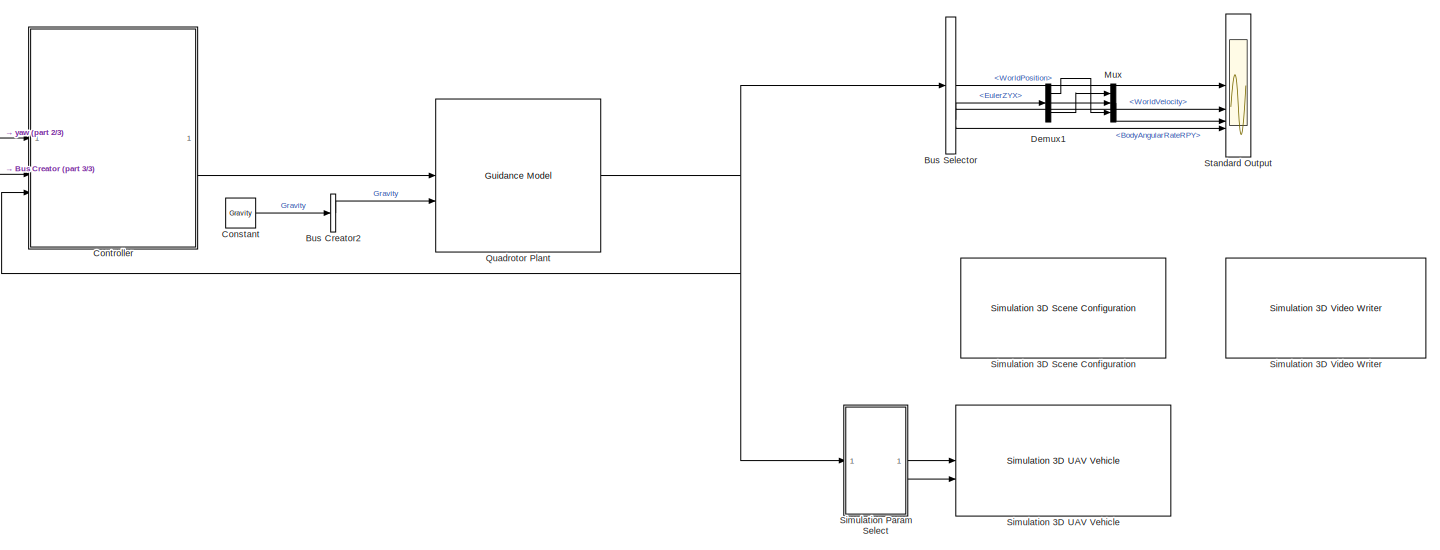
[diagram: root canvas - part 1/3, most of the canvas]
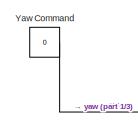
[diagram: root canvas - part 2/3, top left region]
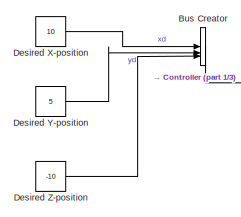
[diagram: root canvas - part 3/3, middle left region]
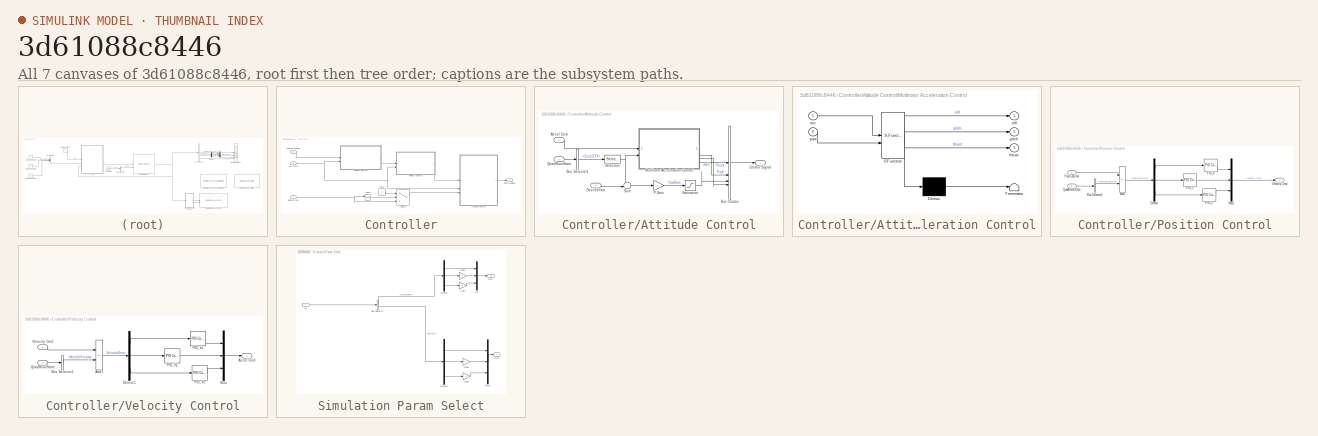
[diagram: thumbnail index - all 7 canvases of the model, root first then tree order]
MODEL slx_3d61088c8446
KIND model
CONFIG AbsTol = auto
CONFIG EnableMultiTasking = off
CONFIG FixedStep = auto
CONFIG InitFcn = % Proportional Gains\nPx = 6;\nPy = 6;\nPz = 6.5;\n\n% Derivative Gains\nDx = 1.5;\nDy = 1.5;\nDz = 2.5;\n\n% Integral Gains\nIx = 0;\nIy = 0;\nIz = 0;\n\n% Filter Coefficients\nNx = 10;\nNy = 10;\nNz = 14.4947065605712; \n\nUAVSampleTime = 0.001;\nGravity = 9.81;\nDroneMass = 0.1;
CONFIG MaxStep = auto
CONFIG MinStep = auto
CONFIG RelTol = 1e-3
CONFIG SampleTimeConstraint = Unconstrained
CONFIG SolverName = VariableStepAuto
CONFIG StartTime = 0.0
CONFIG StopTime = 20
BLOCK [BusCreator] Bus Creator
  DisplayOption = bar
  InheritFromInputs = on
  Inputs = 3
BLOCK [BusCreator] Bus Creator2
  DisplayOption = bar
  InheritFromInputs = on
  Inputs = 1
  NonVirtualBus = on
  OutDataTypeStr = Bus: uavGuidanceEnvironmentBus
BLOCK [BusSelector] Bus Selector
  OutputSignals = WorldPosition,WorldVelocity,EulerZYX,BodyAngularRateRPY
BLOCK [Constant] Constant
  OutDataTypeStr = single
  Value = Gravity
BLOCK [SubSystem] Controller
  NameLocation = top
BLOCK [SubSystem] Controller/Attitude Control
BLOCK [Inport] Controller/Attitude Control/Accel Cmd
BLOCK [BusCreator] Controller/Attitude Control/Bus Creator
  DisplayOption = bar
  InheritFromInputs = off
  Inputs = 4
  NonVirtualBus = on
  OutDataTypeStr = Bus: uavGuidanceControlBus
BLOCK [BusSelector] Controller/Attitude Control/Bus Selector1
  NameLocation = top
  OutputSignals = EulerZYX
BLOCK [Outport] Controller/Attitude Control/Control Signal
BLOCK [Inport] Controller/Attitude Control/DesiredYaw
  Port = 3
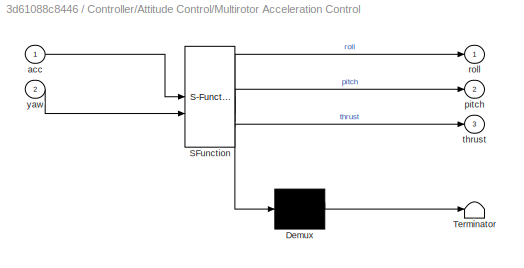
BLOCK [SubSystem] Controller/Attitude Control/Multirotor Acceleration Control
  ErrorFcn = Stateflow.Translate.translate
  PermitHierarchicalResolution = ExplicitOnly
  SFBlockType = MATLAB Function
  TreatAsAtomicUnit = on
BLOCK [Demux] Controller/Attitude Control/Multirotor Acceleration Control/ Demux 
  Outputs = 1
BLOCK [S-Function] Controller/Attitude Control/Multirotor Acceleration Control/ SFunction 
  EnableBusSupport = off
  FunctionName = sf_sfun
  Parameters = DroneMass,Gravity
  PortCounts = [2 4]
  SFcnIsStateOwnerBlock = off
  SFunctionDeploymentMode = off
  Tag = Stateflow S-Function 5
BLOCK [Terminator] Controller/Attitude Control/Multirotor Acceleration Control/ Terminator 
BLOCK [Inport] Controller/Attitude Control/Multirotor Acceleration Control/acc
BLOCK [Outport] Controller/Attitude Control/Multirotor Acceleration Control/pitch
  Port = 2
  VectorParamsAs1DForOutWhenUnconnected = off
BLOCK [Outport] Controller/Attitude Control/Multirotor Acceleration Control/roll
  VectorParamsAs1DForOutWhenUnconnected = off
BLOCK [Outport] Controller/Attitude Control/Multirotor Acceleration Control/thrust
  Port = 3
  VectorParamsAs1DForOutWhenUnconnected = off
BLOCK [Inport] Controller/Attitude Control/Multirotor Acceleration Control/yaw
  Port = 2
BLOCK [Gain] Controller/Attitude Control/P Gain
  Gain = 2
BLOCK [Inport] Controller/Attitude Control/QuadRotorState
  Port = 2
BLOCK [Saturate] Controller/Attitude Control/Saturation
BLOCK [Selector] Controller/Attitude Control/Selector1
  IndexOptions = Index vector (dialog)
  Indices = [1]
  InputPortWidth = 3
  OutputSizes = 1
BLOCK [Sum] Controller/Attitude Control/Sum
  Inputs = -+|
BLOCK [Outport] Controller/Control Signal
BLOCK [Inport] Controller/Desired Position
  Port = 2
BLOCK [Inport] Controller/Desired Yaw
BLOCK [RelationalOperator] Controller/IsNaN
  InputSameDT = off
  Operator = isNaN
  OutDataTypeStr = boolean
  RndMeth = Simplest
BLOCK [SubSystem] Controller/Position Control
BLOCK [Sum] Controller/Position Control/Add
  IconShape = rectangular
  Inputs = +-
BLOCK [BusSelector] Controller/Position Control/Bus Selector1
  NameLocation = top
  OutputSignals = WorldPosition
BLOCK [Demux] Controller/Position Control/Demux
  Outputs = 3
BLOCK [Mux] Controller/Position Control/Mux1
  DisplayOption = bar
  Inputs = 3
BLOCK [Reference] Controller/Position Control/PID_X  REF=slpidlib/PID Controller
  AttributesFormatString = P: %<P>, I: %<I>, D:%<D>
  SourceBlock = slpidlib/PID Controller
  SourceType = PID 1dof
BLOCK [Reference] Controller/Position Control/PID_Y  REF=slpidlib/PID Controller
  AttributesFormatString = P: %<P>, I: %<I>, D:%<D>
  SourceBlock = slpidlib/PID Controller
  SourceType = PID 1dof
BLOCK [Reference] Controller/Position Control/PID_Z  REF=slpidlib/PID Controller
  AttributesFormatString = P: %<P>, I: %<I>, D:%<D>
  SourceBlock = slpidlib/PID Controller
  SourceType = PID 1dof
BLOCK [Inport] Controller/Position Control/PositionCmd
BLOCK [Inport] Controller/Position Control/QuadRotorState
  Port = 2
BLOCK [Outport] Controller/Position Control/Velocity Cmd
BLOCK [Switch] Controller/Switch
  Criteria = u2 ~= 0
  InputSameDT = off
  SaturateOnIntegerOverflow = off
BLOCK [Inport] Controller/UAV State
  Port = 3
BLOCK [SubSystem] Controller/Velocity Control
BLOCK [Outport] Controller/Velocity Control/Accel Cmd
BLOCK [Sum] Controller/Velocity Control/Add1
  IconShape = rectangular
  Inputs = +-
BLOCK [BusSelector] Controller/Velocity Control/Bus Selector1
  NameLocation = top
  OutputSignals = WorldVelocity
BLOCK [Demux] Controller/Velocity Control/Demux1
  Outputs = 3
BLOCK [Mux] Controller/Velocity Control/Mux
  DisplayOption = bar
  Inputs = 3
BLOCK [Reference] Controller/Velocity Control/PID_Vx  REF=slpidlib/PID Controller
  AttributesFormatString = P: %<P>, I: %<I>, D:%<D>
  SourceBlock = slpidlib/PID Controller
  SourceType = PID 1dof
BLOCK [Reference] Controller/Velocity Control/PID_Vy  REF=slpidlib/PID Controller
  AttributesFormatString = P: %<P>, I: %<I>, D:%<D>
  SourceBlock = slpidlib/PID Controller
  SourceType = PID 1dof
BLOCK [Reference] Controller/Velocity Control/PID_Vz  REF=slpidlib/PID Controller
  AttributesFormatString = P: %<P>, I: %<I>, D:%<D>
  SourceBlock = slpidlib/PID Controller
  SourceType = PID 1dof
BLOCK [Inport] Controller/Velocity Control/QuadRotorState
  Port = 2
BLOCK [Inport] Controller/Velocity Control/Velocity Cmd
BLOCK [Constant] Controller/Zero
  OutDataTypeStr = Inherit: Inherit via back propagation
  Value = 0
BLOCK [Demux] Demux1
  Outputs = 3
BLOCK [Constant] Desired X-position
  OutDataTypeStr = single
  Value = 10
BLOCK [Constant] Desired Y-position
  OutDataTypeStr = single
  Value = 5
BLOCK [Constant] Desired Z-position
  OutDataTypeStr = single
  Value = -10
BLOCK [Mux] Mux
  DisplayOption = bar
  Inputs = 3
BLOCK [Reference] Quadrotor Plant  REF=uavalgslib/Guidance Model
  NameLocation = top
  SourceBlock = uavalgslib/Guidance Model
  SourceType = Guidance Model
BLOCK [Reference] Simulation 3D Scene Configuration  REF=sim3dlib/Simulation 3D Scene Configuration
  LibrarySourceBlock = uavsim3dlib/Simulation 3D Scene Configuration
  Priority = 0
  SourceBlock = sim3dlib/Simulation 3D Scene Configuration
  SourceType = Simulation 3D Scene Configuration
BLOCK [Reference] Simulation 3D UAV Vehicle  REF=uavsim3dlib/Simulation 3D UAV Vehicle
  Priority = -1
  SourceBlock = uavsim3dlib/Simulation 3D UAV Vehicle
  SourceType = Simulation 3D UAV Vehicle
BLOCK [Reference] Simulation 3D Video Writer  REF=sim3dlib/Simulation 3D Video Writer
  Commented = on
  LibrarySourceBlock = sl3dlib/Simulation 3D/Utilities/Simulation 3D Video Writer
  Priority = 1
  SourceBlock = sim3dlib/Simulation 3D Video Writer
  SourceType = Simulation3DVideoWriterSystem
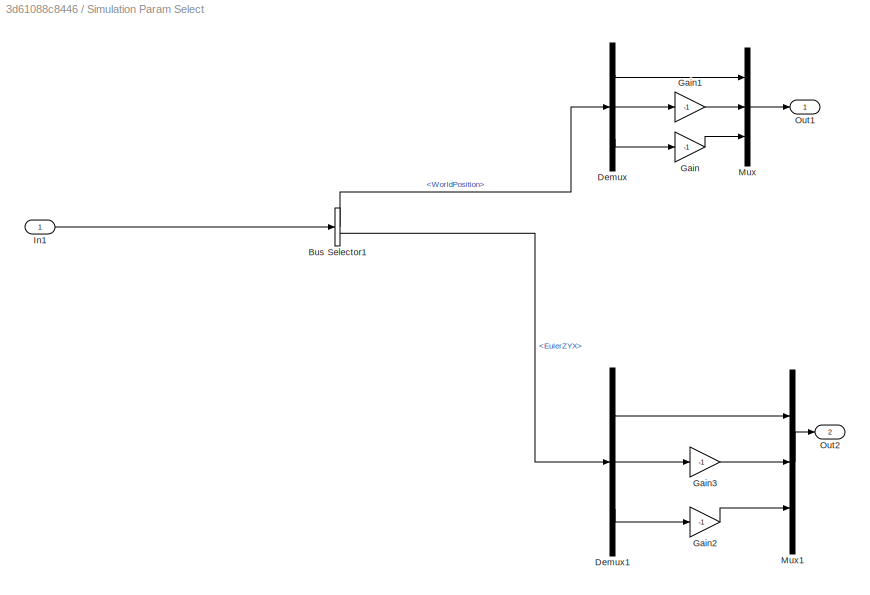
BLOCK [SubSystem] Simulation Param Select
BLOCK [BusSelector] Simulation Param Select/Bus Selector1
  OutputSignals = WorldPosition,EulerZYX
BLOCK [Demux] Simulation Param Select/Demux
  Outputs = 3
BLOCK [Demux] Simulation Param Select/Demux1
  Outputs = 3
BLOCK [Gain] Simulation Param Select/Gain
  Gain = -1
BLOCK [Gain] Simulation Param Select/Gain1
  Gain = -1
BLOCK [Gain] Simulation Param Select/Gain2
  Gain = -1
BLOCK [Gain] Simulation Param Select/Gain3
  Gain = -1
BLOCK [Inport] Simulation Param Select/In1
BLOCK [Mux] Simulation Param Select/Mux
  DisplayOption = bar
  Inputs = 3
BLOCK [Mux] Simulation Param Select/Mux1
  DisplayOption = bar
  Inputs = 3
BLOCK [Outport] Simulation Param Select/Out1
BLOCK [Outport] Simulation Param Select/Out2
  Port = 2
BLOCK [Scope] Standard Output
  ActiveDisplayYMaximum = 15.896650850772858
  ActiveDisplayYMinimum = -10.651587545871735
  Floating = off
  GraphicalSettings = {"Style":{"BackgroundColor":[0.12941176470588237,0.12941176470588237,0.12941176470588237],"AxesColor":[0.07058823529411765,0.07058823529411765,0.07058823529411765],"LabelsColor":[0.8509803921568627,0.8509803921568627,0.8509803921568627],"PreserveColors":false,"Visible":[true,true,true,true,true,true,true,true,true,true,true,true],"LineStyle":["-","-","-","-","-","-","-","-","-","-","-","-"],"LineW...<+4202ch>
  LayoutDimensionsString = [4 1]
  MultipleDisplayCache = [{"MaxYLimMag":15.896650850772858,"MaxYLimReal":15.896650850772858,"MinYLimMag":0,"MinYLimReal":-10.651587545871735,"PlotAsMagnitudePhase":false,"ShowGrid":true,"ShowLegend":true,"Title":"%<SignalLabel>","YLabel":""},{"MaxYLimMag":3.7338400483131409,"MaxYLimReal":3.7338400483131409,"MinYLimMag":0,"MinYLimReal":-3.6987858414649963,"PlotAsMagnitudePhase":false,"ShowGrid":true,"ShowLegend":true,"Titl...<+467ch>
  NumInputPorts = 4
  ScopeFrameLocation = window
  ShowLegend = on
  Visible = on
  WasSavedAsWebScope = on
  WindowPosition = [1049.000000,140.000000,639.000000,815.000000,]
BLOCK [Constant] Yaw Command
  OutDataTypeStr = single
  Value = 0
LINE Bus Creator2:1 -> Quadrotor Plant:2
LINE Bus Creator:1 -> Controller:2
LINE Bus Selector:1 -> Standard Output:1
LINE Bus Selector:2 -> Standard Output:2
LINE Bus Selector:3 -> Demux1:1
LINE Bus Selector:4 -> Standard Output:4
LINE Constant:1 -> Bus Creator2:1
LINE Controller/Attitude Control/Accel Cmd:1 -> Controller/Attitude Control/Multirotor Acceleration Control:1
LINE Controller/Attitude Control/Bus Creator:1 -> Controller/Attitude Control/Control Signal:1
LINE Controller/Attitude Control/Bus Selector1:1 -> Controller/Attitude Control/Selector1:1
LINE Controller/Attitude Control/DesiredYaw:1 -> Controller/Attitude Control/Sum:2
LINE Controller/Attitude Control/Multirotor Acceleration Control:1 -> Controller/Attitude Control/Bus Creator:1
LINE Controller/Attitude Control/Multirotor Acceleration Control:2 -> Controller/Attitude Control/Bus Creator:2
LINE Controller/Attitude Control/Multirotor Acceleration Control:3 -> Controller/Attitude Control/Bus Creator:4
LINE Controller/Attitude Control/P Gain:1 -> Controller/Attitude Control/Saturation:1
LINE Controller/Attitude Control/QuadRotorState:1 -> Controller/Attitude Control/Bus Selector1:1
LINE Controller/Attitude Control/Saturation:1 -> Controller/Attitude Control/Bus Creator:3
NET Controller/Attitude Control/Selector1:1 -> Controller/Attitude Control/Multirotor Acceleration Control:2, Controller/Attitude Control/Sum:1
LINE Controller/Attitude Control/Sum:1 -> Controller/Attitude Control/P Gain:1
LINE Controller/Attitude Control:1 -> Controller/Control Signal:1
LINE Controller/Desired Position:1 -> Controller/Position Control:1
NET Controller/Desired Yaw:1 -> Controller/IsNaN:1, Controller/Switch:3
LINE Controller/IsNaN:1 -> Controller/Switch:2
LINE Controller/Position Control/Add:1 -> Controller/Position Control/Demux:1
LINE Controller/Position Control/Bus Selector1:1 -> Controller/Position Control/Add:2
LINE Controller/Position Control/Demux:1 -> Controller/Position Control/PID_X:1
LINE Controller/Position Control/Demux:2 -> Controller/Position Control/PID_Y:1
LINE Controller/Position Control/Demux:3 -> Controller/Position Control/PID_Z:1
LINE Controller/Position Control/Mux1:1 -> Controller/Position Control/Velocity Cmd:1
LINE Controller/Position Control/PID_X:1 -> Controller/Position Control/Mux1:1
LINE Controller/Position Control/PID_Y:1 -> Controller/Position Control/Mux1:2
LINE Controller/Position Control/PID_Z:1 -> Controller/Position Control/Mux1:3
LINE Controller/Position Control/PositionCmd:1 -> Controller/Position Control/Add:1
LINE Controller/Position Control/QuadRotorState:1 -> Controller/Position Control/Bus Selector1:1
LINE Controller/Position Control:1 -> Controller/Velocity Control:1
LINE Controller/Switch:1 -> Controller/Attitude Control:3
NET Controller/UAV State:1 -> Controller/Attitude Control:2, Controller/Position Control:2, Controller/Velocity Control:2
LINE Controller/Velocity Control/Add1:1 -> Controller/Velocity Control/Demux1:1
LINE Controller/Velocity Control/Bus Selector1:1 -> Controller/Velocity Control/Add1:2
LINE Controller/Velocity Control/Demux1:1 -> Controller/Velocity Control/PID_Vx:1
LINE Controller/Velocity Control/Demux1:2 -> Controller/Velocity Control/PID_Vy:1
LINE Controller/Velocity Control/Demux1:3 -> Controller/Velocity Control/PID_Vz:1
LINE Controller/Velocity Control/Mux:1 -> Controller/Velocity Control/Accel Cmd:1
LINE Controller/Velocity Control/PID_Vx:1 -> Controller/Velocity Control/Mux:1
LINE Controller/Velocity Control/PID_Vy:1 -> Controller/Velocity Control/Mux:2
LINE Controller/Velocity Control/PID_Vz:1 -> Controller/Velocity Control/Mux:3
LINE Controller/Velocity Control/QuadRotorState:1 -> Controller/Velocity Control/Bus Selector1:1
LINE Controller/Velocity Control/Velocity Cmd:1 -> Controller/Velocity Control/Add1:1
LINE Controller/Velocity Control:1 -> Controller/Attitude Control:1
LINE Controller/Zero:1 -> Controller/Switch:1
LINE Controller:1 -> Quadrotor Plant:1
LINE Demux1:1 -> Mux:3
LINE Demux1:2 -> Mux:2
LINE Demux1:3 -> Mux:1
LINE Desired X-position:1 -> Bus Creator:1
LINE Desired Y-position:1 -> Bus Creator:2
LINE Desired Z-position:1 -> Bus Creator:3
LINE Mux:1 -> Standard Output:3
NET Quadrotor Plant:1 -> Bus Selector:1, Controller:3, Simulation Param Select:1
LINE Simulation Param Select/Bus Selector1:1 -> Simulation Param Select/Demux:1
LINE Simulation Param Select/Bus Selector1:2 -> Simulation Param Select/Demux1:1
LINE Simulation Param Select/Demux1:1 -> Simulation Param Select/Mux1:1
LINE Simulation Param Select/Demux1:2 -> Simulation Param Select/Gain3:1
LINE Simulation Param Select/Demux1:3 -> Simulation Param Select/Gain2:1
LINE Simulation Param Select/Demux:1 -> Simulation Param Select/Mux:1
LINE Simulation Param Select/Demux:2 -> Simulation Param Select/Gain1:1
LINE Simulation Param Select/Demux:3 -> Simulation Param Select/Gain:1
LINE Simulation Param Select/Gain1:1 -> Simulation Param Select/Mux:2
LINE Simulation Param Select/Gain2:1 -> Simulation Param Select/Mux1:3
LINE Simulation Param Select/Gain3:1 -> Simulation Param Select/Mux1:2
LINE Simulation Param Select/Gain:1 -> Simulation Param Select/Mux:3
LINE Simulation Param Select/In1:1 -> Simulation Param Select/Bus Selector1:1
LINE Simulation Param Select/Mux1:1 -> Simulation Param Select/Out2:1
LINE Simulation Param Select/Mux:1 -> Simulation Param Select/Out1:1
LINE Simulation Param Select:1 -> Simulation 3D UAV Vehicle:1
LINE Simulation Param Select:2 -> Simulation 3D UAV Vehicle:2
LINE Yaw Command:1 -> Controller:1
note: NET lines group one-source signal fan-out (src -> all destinations, sorted); 1:1 wires keep LINE
CHART Controller/Attitude Control/Multirotor Acceleration Control states=1 transitions=1
  STATE_LABEL 'eML_blk_kernel()'
  STATE_LABEL 'SCRIPT:\nfunction [roll, pitch, thrust] = accControl(acc, yaw, DroneMass, Gravity)\n\n    xddot = acc(1);\n    yddot = acc(2);\n    zddot = acc(3);\n    \n    pitch = atan2((-xddot*cos(yaw)-yddot*sin(yaw)), ( -zddot + Gravity));\n    roll = atan2(((-xddot*sin(yaw)+yddot*cos(yaw))*cos(pitch)), (-zddot+Gravity));\n    \n    roll_limit = 25*pi/180;\n    pitch_limit = 25*pi/180;\n    \n    roll = min(roll_limit, m...<+157ch>'
CHART  states=0 transitions=0
